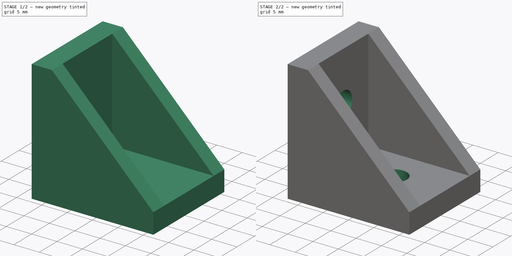
[diagram: build sequence overview — one tinted view per stage of 2, left to right]
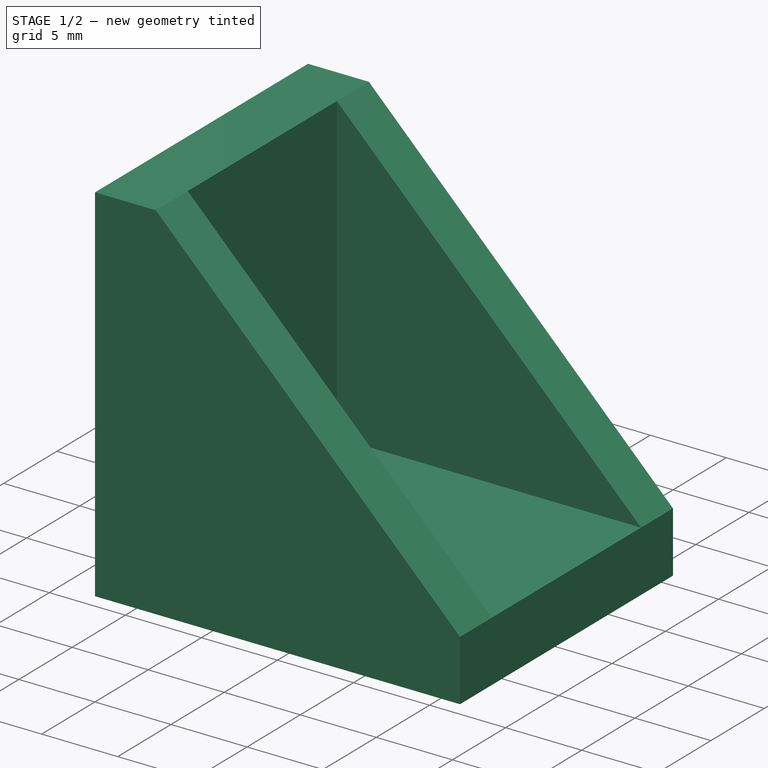
[diagram: stage 1 of 2 — iso view after this stage's code; geometry added in this stage tinted green]
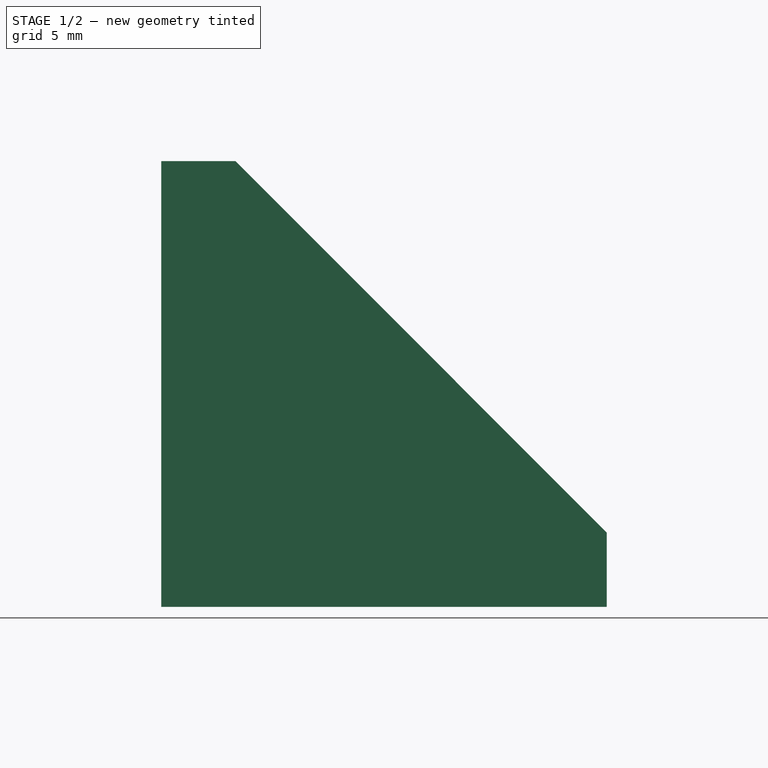
[diagram: stage 1 of 2 — front view after this stage's code; geometry added in this stage tinted green]
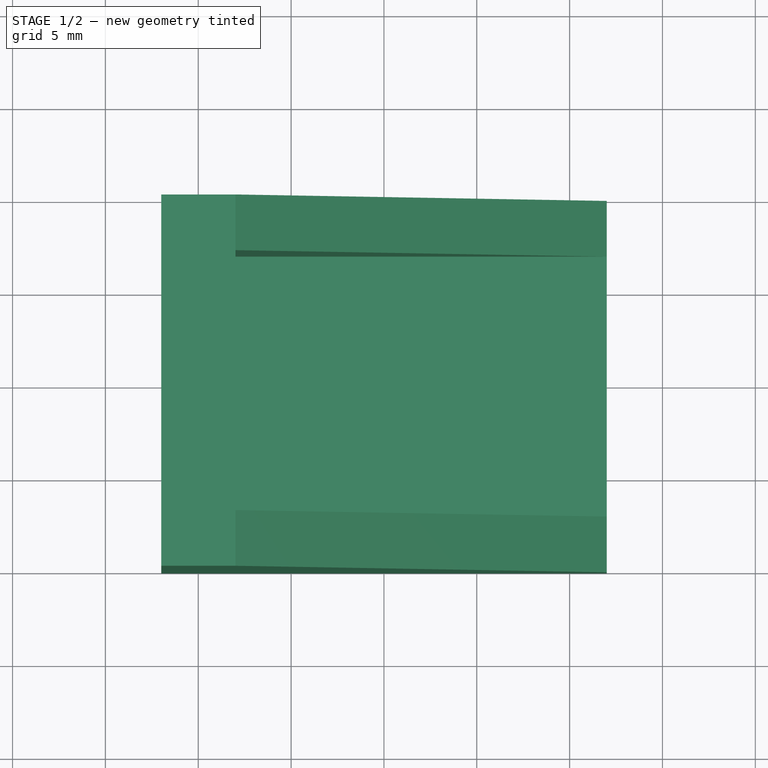
[diagram: stage 1 of 2 — top view after this stage's code; geometry added in this stage tinted green]
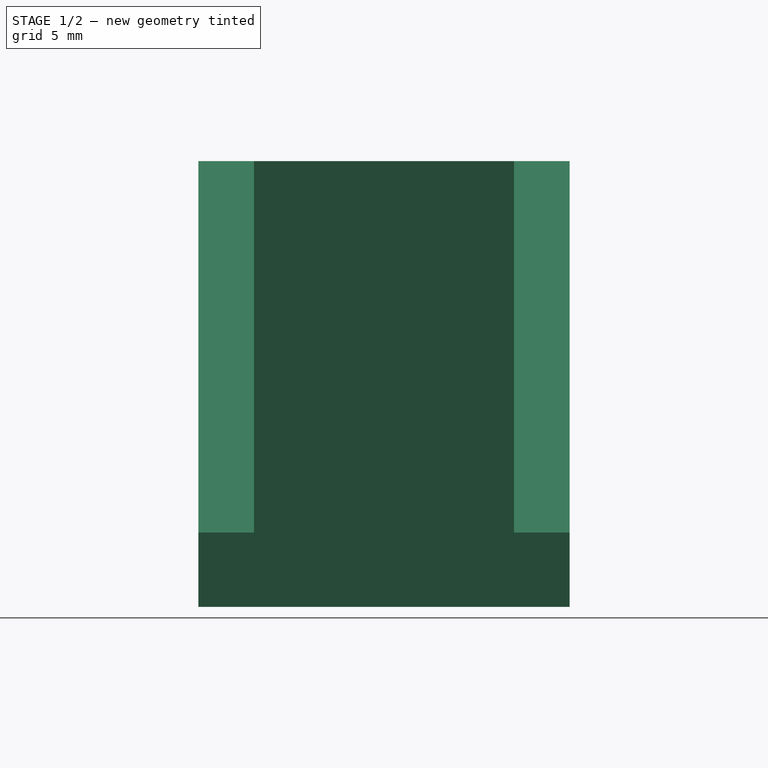
[diagram: stage 1 of 2 — right view after this stage's code; geometry added in this stage tinted green]
FCSTD DOCUMENT  (FreeCAD 0.15R4477 (Git))
Label: Angle_Bracket
License: CC-BY 3.0
LicenseURL: http://creativecommons.org/licenses/by/3.0/
objects: Sketcher::SketchObject×4, PartDesign::Pocket×3, PartDesign::Pad×1
note: 12 computed .brp shape members not serialized (recipe doc carries the construction recipe); baked Part::Feature solids carry a one-line shape summary decoded from their .brp

FEATURE [Sketcher::SketchObject] Sketch
  Placement = pos=(0,0,0) rot=(1,0,0;1.5708rad)
  sketch-geometry (5):
    g0: LineSegment StartX=-51.9933 StartY=0 StartZ=0 EndX=-51.9933 EndY=24.0003 EndZ=0
    g1: LineSegment StartX=-51.9933 StartY=24.0003 StartZ=0 EndX=-47.9945 EndY=24.0003 EndZ=0
    g2: LineSegment StartX=-47.9945 StartY=24.0003 StartZ=0 EndX=-27.9996 EndY=3.99982 EndZ=0
    g3: LineSegment StartX=-27.9996 StartY=3.99982 StartZ=0 EndX=-27.9996 EndY=0 EndZ=0
    g4: LineSegment StartX=-27.9996 StartY=0 StartZ=0 EndX=-51.9933 EndY=0 EndZ=0
  constraints (10):
    c: PointOnObject(g0,g-1)
    c: Vertical(g0)
    c: Coincident(g0,g1)
    c: Horizontal(g1)
    c: Coincident(g1,g2)
    c: Coincident(g2,g3)
    c: Vertical(g3)
    c: Coincident(g3,g4)
    c: Coincident(g4,g0)
    c: Horizontal(g4)
FEATURE [PartDesign::Pad] Pad
  Length = 20
  Length2 = 100
  Placement = pos=(0,0,0) rot=(1,0,0;1.5708rad)
  Sketch = -> Sketch
  Type = 0
FEATURE [Sketcher::SketchObject] Sketch001
  ExternalGeometry = -> [Pad]
  Placement = pos=(0,0,24.0003) rot=(0,0,1;3.14159rad)
  Support = -> Pad [Face2]
  sketch-geometry (4):
    g0: LineSegment StartX=27.9996 StartY=17 StartZ=0 EndX=47.9945 EndY=17 EndZ=0
    g1: LineSegment StartX=47.9945 StartY=17 StartZ=0 EndX=47.9945 EndY=3 EndZ=0
    g2: LineSegment StartX=47.9945 StartY=3 StartZ=0 EndX=27.9996 EndY=3 EndZ=0
    g3: LineSegment StartX=27.9996 StartY=3 StartZ=0 EndX=27.9996 EndY=17 EndZ=0
  constraints (12):
    c: Coincident(g0,g1)
    c: Coincident(g1,g2)
    c: Coincident(g2,g3)
    c: Coincident(g3,g0)
    c: Horizontal(g0)
    c: Horizontal(g2)
    c: Vertical(g1)
    c: Vertical(g3)
    c: PointOnObject(g0,g-4)
    c: PointOnObject(g0,g-3)
    c: Distance(g-5,g0) = 3
    c: Distance(g2,g-6) = 3
FEATURE [PartDesign::Pocket] Pocket
  Length = 20
  Placement = pos=(0,0,0) rot=(1,0,0;1.5708rad)
  Sketch = -> Sketch001
  Type = 0
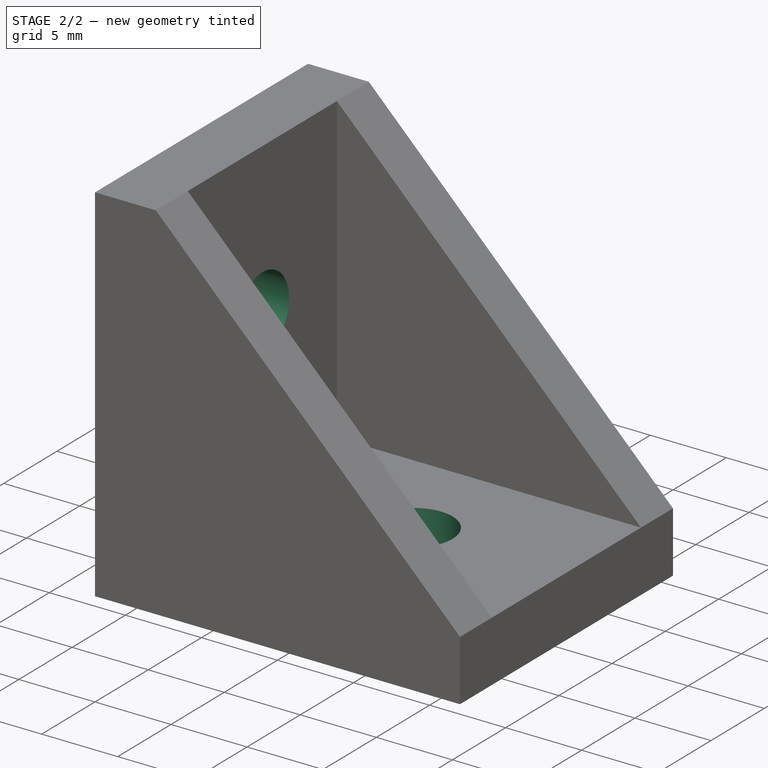
[diagram: stage 2 of 2 — iso view after this stage's code; geometry added in this stage tinted green]
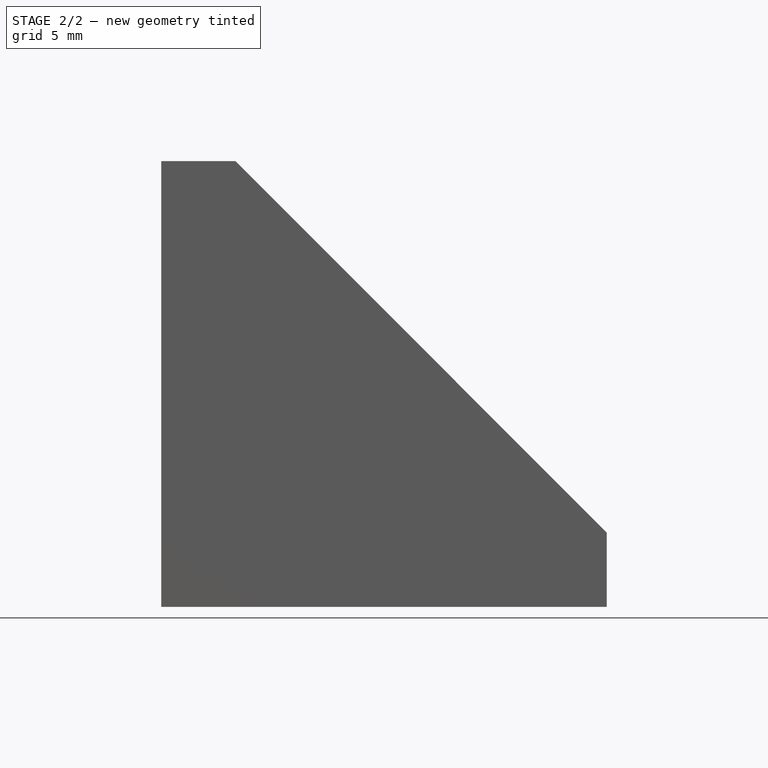
[diagram: stage 2 of 2 — front view after this stage's code; geometry added in this stage tinted green]
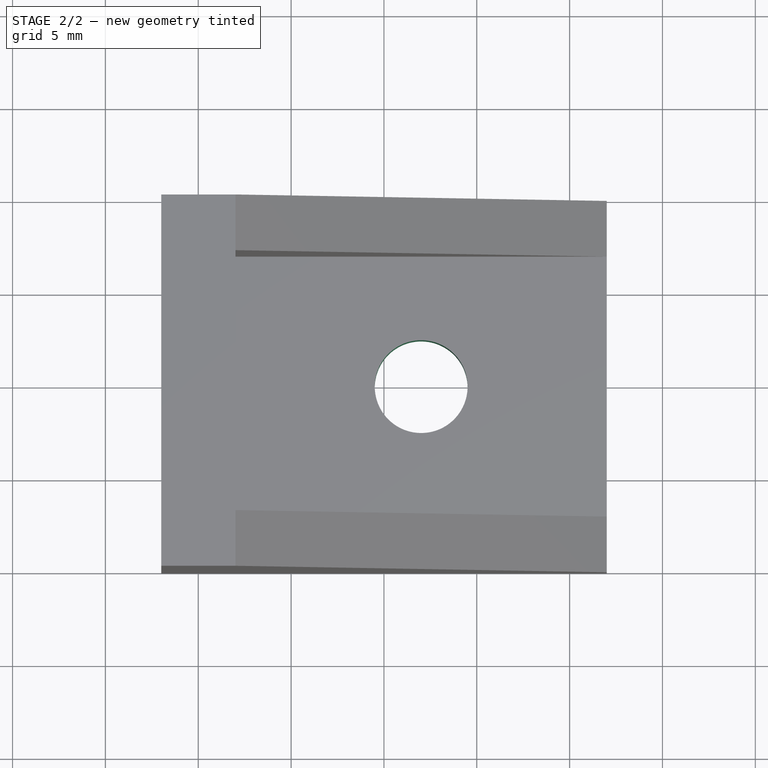
[diagram: stage 2 of 2 — top view after this stage's code; geometry added in this stage tinted green]
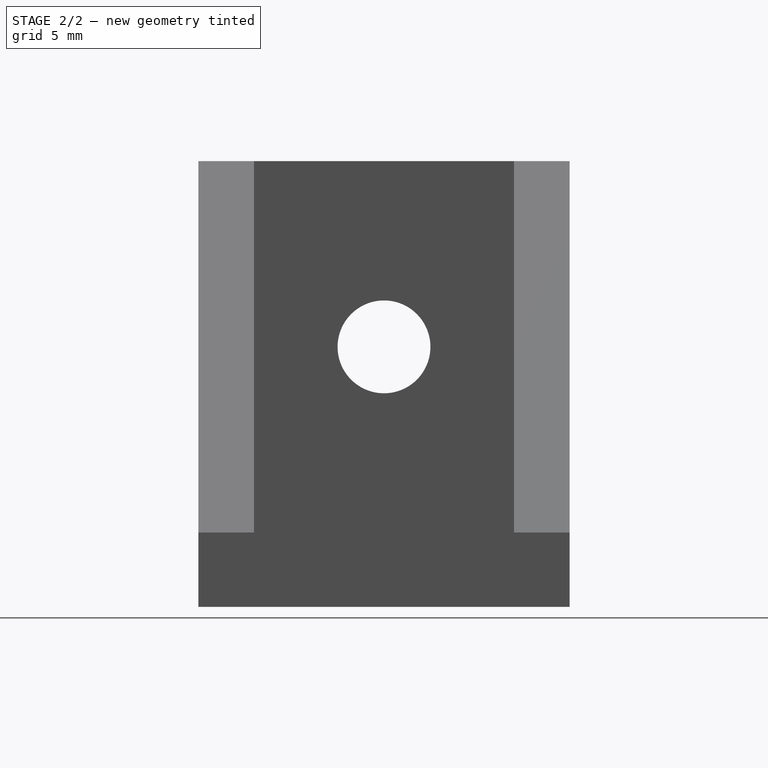
[diagram: stage 2 of 2 — right view after this stage's code; geometry added in this stage tinted green]
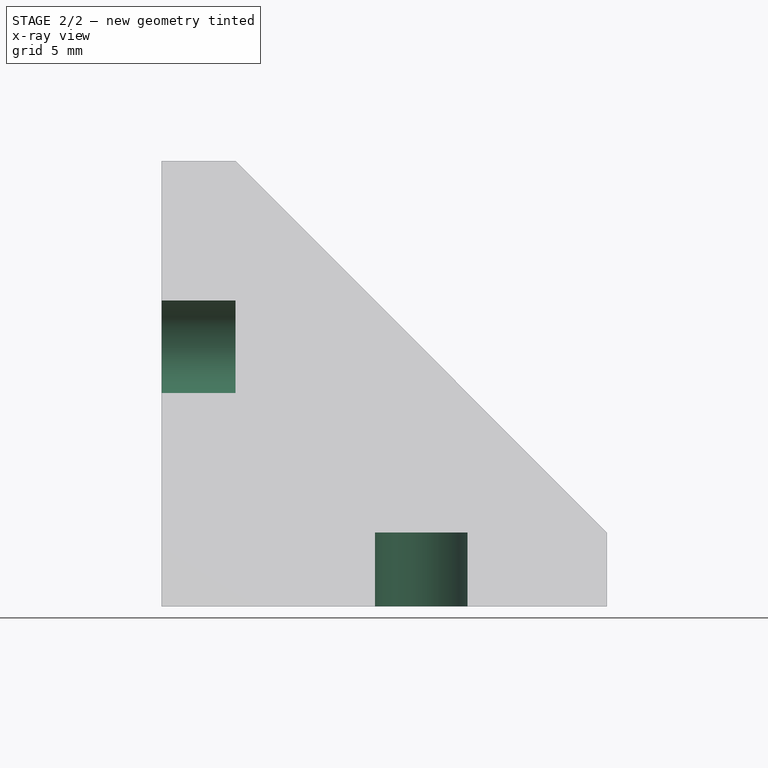
[diagram: stage 2 of 2 — x-ray composite at the front view; earlier geometry ghosted, this stage's added geometry solid]
FEATURE [Sketcher::SketchObject] Sketch002
  ExternalGeometry = -> [Pocket]
  Placement = pos=(-47.9945,0,0) rot=(0.707107,0,0.707107;3.14159rad)
  Support = -> Pocket [Face8]
  sketch-geometry (1):
    g0: Circle CenterX=13.9998 CenterY=10 CenterZ=0 NormalX=0 NormalY=0 NormalZ=1 Radius=2.5
  constraints (3):
    c: Distance(g0,g-3) = 10
    c: Distance(g0,g-4) = 10
    c: Radius(g0) = 2.5
FEATURE [PartDesign::Pocket] Pocket001
  Length = 5
  Placement = pos=(0,0,0) rot=(1,0,0;1.5708rad)
  Sketch = -> Sketch002
  Type = 0
FEATURE [Sketcher::SketchObject] Sketch003
  ExternalGeometry = -> [Pocket001]
  Placement = pos=(0,0,4.00033) rot=(0,0,1;3.14159rad)
  Support = -> Pocket001 [Face11]
  sketch-geometry (1):
    g0: Circle CenterX=37.9945 CenterY=10 CenterZ=0 NormalX=0 NormalY=0 NormalZ=1 Radius=2.5
  constraints (3):
    c: Distance(g0,g-3) = 10
    c: Distance(g0,g-4) = 10
    c: Radius(g0) = 2.5
FEATURE [PartDesign::Pocket] Pocket002
  Length = 5
  Placement = pos=(0,0,0) rot=(1,0,0;1.5708rad)
  Sketch = -> Sketch003
  Type = 0
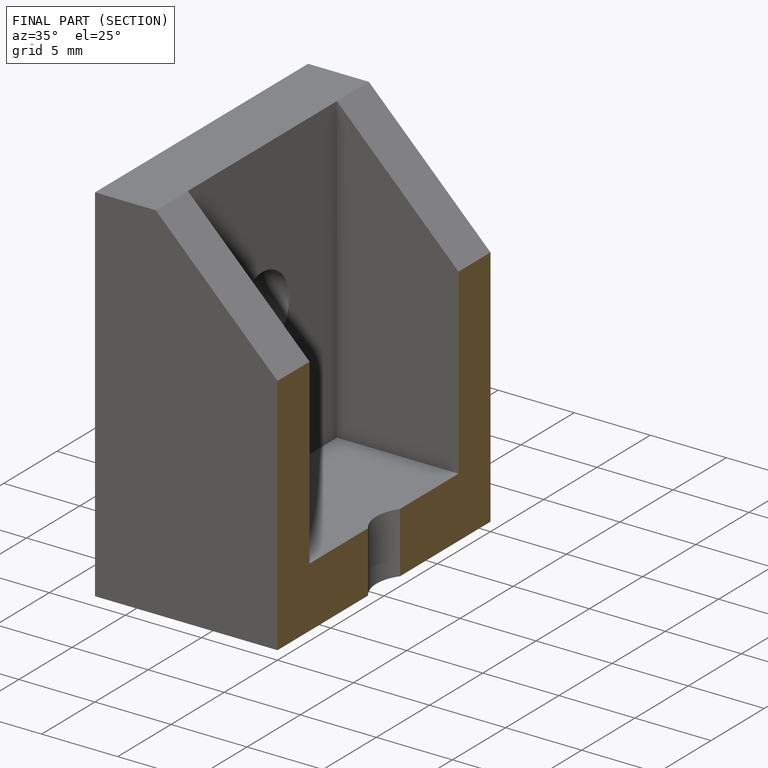
[diagram: finished part — half-section view (interior)]
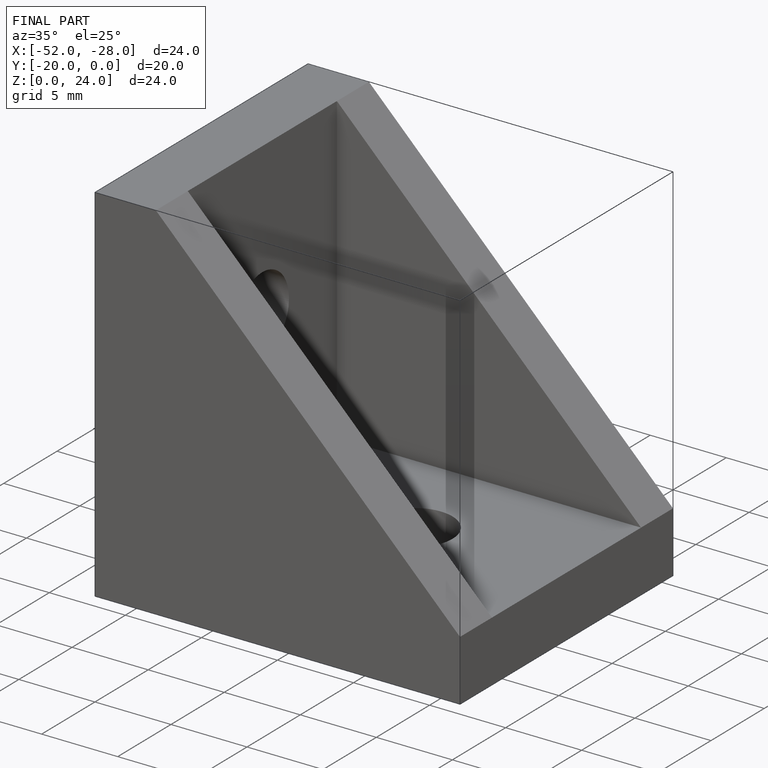
[diagram: finished part — iso view with bounding-box wireframe]
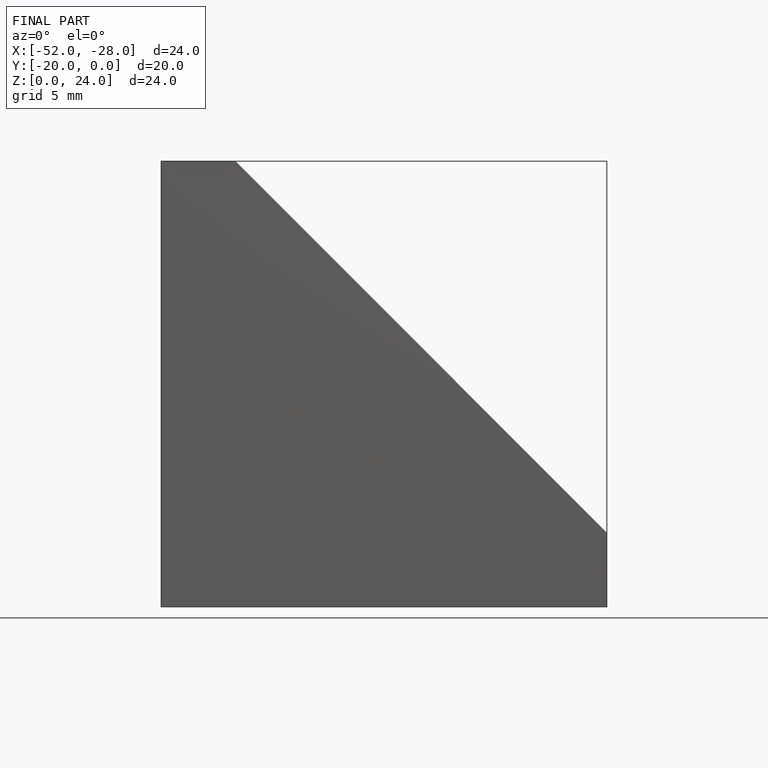
[diagram: finished part — front view with bounding-box wireframe]
